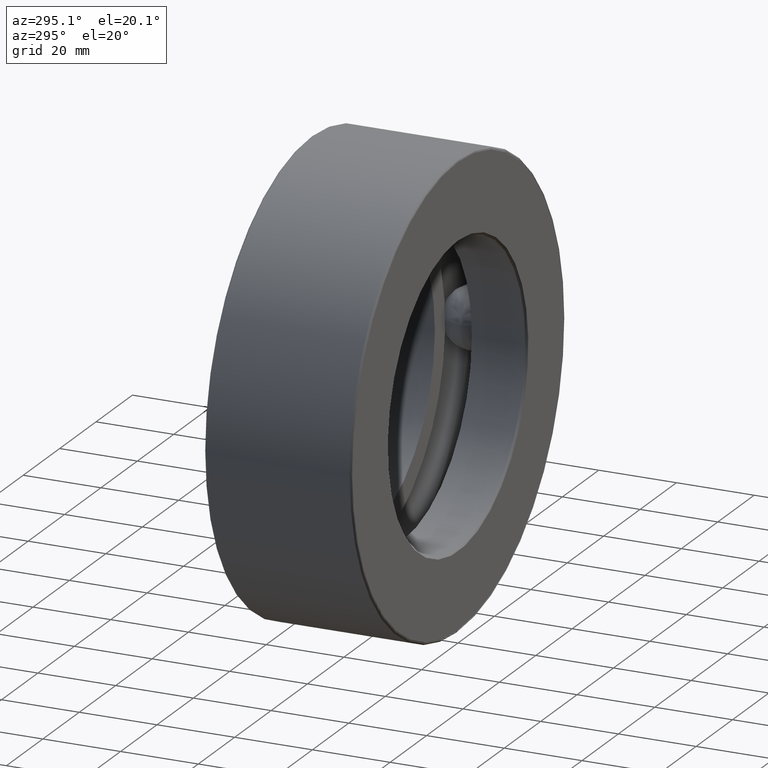
[diagram: clean part render]
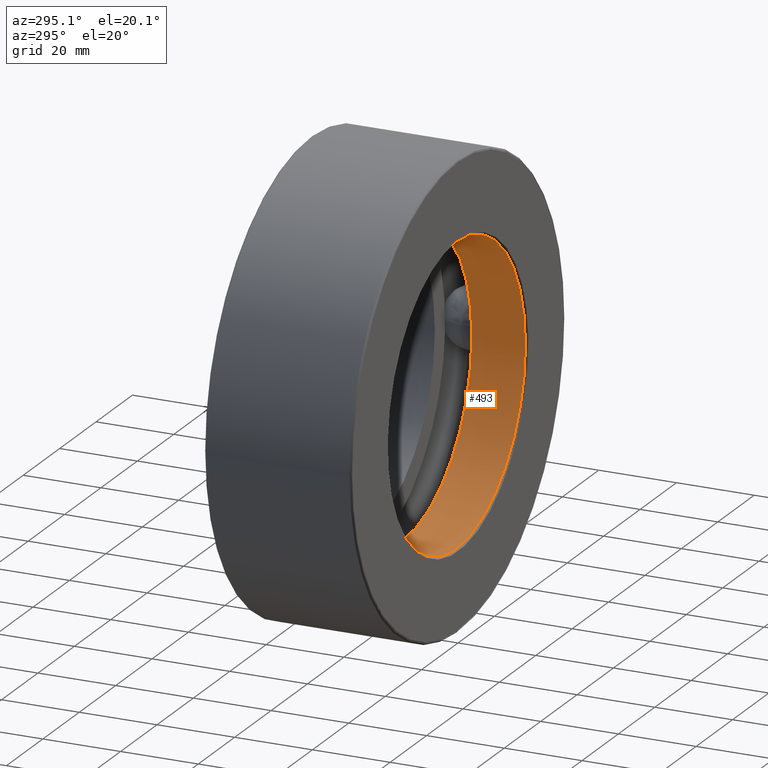
[diagram: same view with one face highlighted and labeled with its STEP entity id]
A machine part, auxiliary view. The second image highlights one B-rep face of the part: STEP entity #493.
In plain terms, the highlighted cylindrical surface (bore or boss wall) has radius 38.1 mm, axis along (-0, 1, -0).
Its self-contained STEP definition (entity closure, byte-faithful):
#68 = FACE_OUTER_BOUND ( 'NONE', #300, .T. ) ;
#89 = DIRECTION ( 'NONE',  ( -0.0000000000000000000, 1.000000000000000000, -0.0000000000000000000 ) ) ;
#103 = AXIS2_PLACEMENT_3D ( 'NONE', #220, #89, #450 ) ;
#128 = CIRCLE ( 'NONE', #103, 1.499999999999999800 ) ;
#192 = ORIENTED_EDGE ( 'NONE', *, *, #376, .F. ) ;
#220 = CARTESIAN_POINT ( 'NONE',  ( 0.0000000000000000000, 0.02000000000000087800, 0.0000000000000000000 ) ) ;
#270 = AXIS2_PLACEMENT_3D ( 'NONE', #543, #445, #272 ) ;
#272 = DIRECTION ( 'NONE',  ( 0.0000000000000000000, 0.0000000000000000000, 1.000000000000000000 ) ) ;
#300 = EDGE_LOOP ( 'NONE', ( #192 ) ) ;
#311 = CARTESIAN_POINT ( 'NONE',  ( 0.0000000000000000000, 0.02000000000000087800, 1.499999999999999800 ) ) ;
#316 = CARTESIAN_POINT ( 'NONE',  ( 0.0000000000000000000, 0.0000000000000000000, 0.0000000000000000000 ) ) ;
#347 = CARTESIAN_POINT ( 'NONE',  ( 0.0000000000000000000, 0.5625000000000001100, 1.500000000000000200 ) ) ;
#356 = AXIS2_PLACEMENT_3D ( 'NONE', #316, #496, #548 ) ;
#357 = ORIENTED_EDGE ( 'NONE', *, *, #415, .T. ) ;
#367 = FACE_OUTER_BOUND ( 'NONE', #451, .T. ) ;
#376 = EDGE_CURVE ( 'NONE', #534, #534, #128, .T. ) ;
#403 = VERTEX_POINT ( 'NONE', #347 ) ;
#415 = EDGE_CURVE ( 'NONE', #403, #403, #567, .T. ) ;
#442 = CYLINDRICAL_SURFACE ( 'NONE', #356, 1.499999999999999800 ) ;
#445 = DIRECTION ( 'NONE',  ( -0.0000000000000000000, 1.000000000000000000, -0.0000000000000000000 ) ) ;
#450 = DIRECTION ( 'NONE',  ( 0.0000000000000000000, 0.0000000000000000000, 1.000000000000000000 ) ) ;
#451 = EDGE_LOOP ( 'NONE', ( #357 ) ) ;
#493 = ADVANCED_FACE ( 'NONE', ( #68, #367 ), #442, .F. ) ;
#496 = DIRECTION ( 'NONE',  ( -0.0000000000000000000, 1.000000000000000000, -0.0000000000000000000 ) ) ;
#534 = VERTEX_POINT ( 'NONE', #311 ) ;
#543 = CARTESIAN_POINT ( 'NONE',  ( 0.0000000000000000000, 0.5625000000000001100, 0.0000000000000000000 ) ) ;
#548 = DIRECTION ( 'NONE',  ( 0.0000000000000000000, 0.0000000000000000000, 1.000000000000000000 ) ) ;
#567 = CIRCLE ( 'NONE', #270, 1.500000000000000200 ) ;